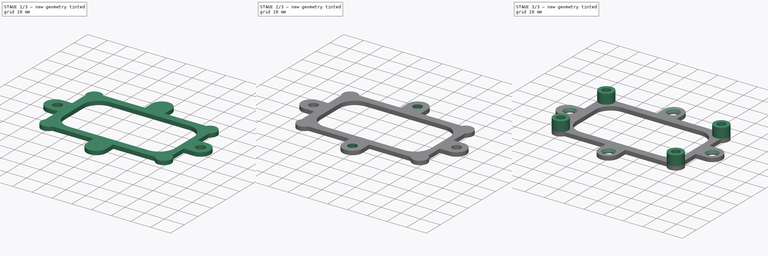
[diagram: build sequence overview — one tinted view per stage of 3, left to right]
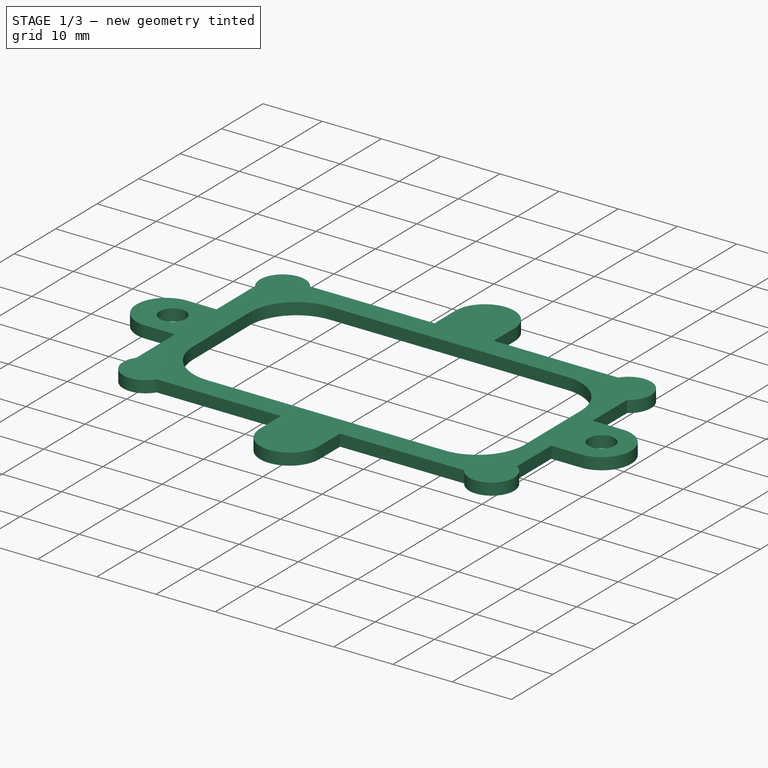
[diagram: stage 1 of 3 — iso view after this stage's code; geometry added in this stage tinted green]
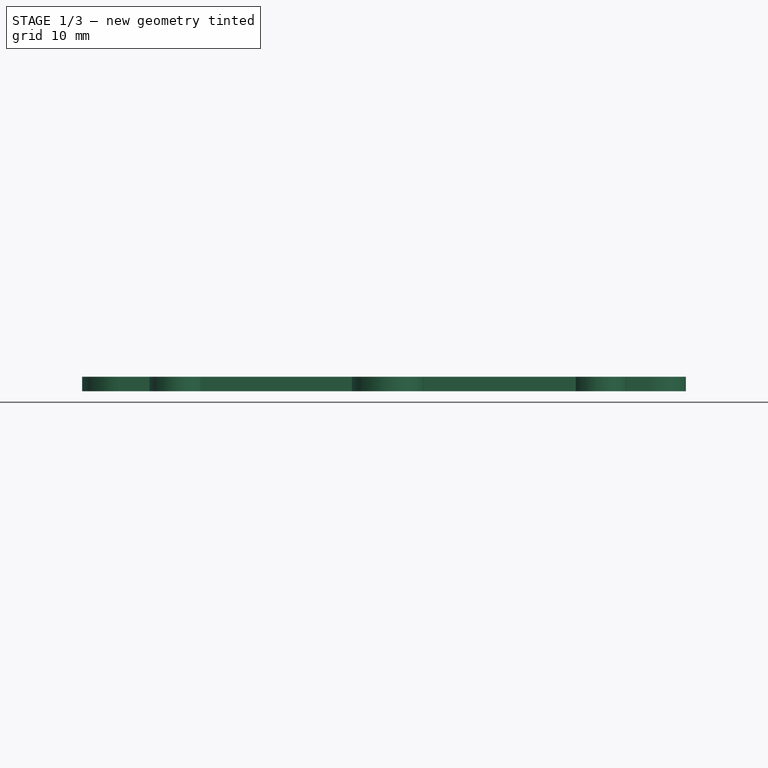
[diagram: stage 1 of 3 — front view after this stage's code; geometry added in this stage tinted green]
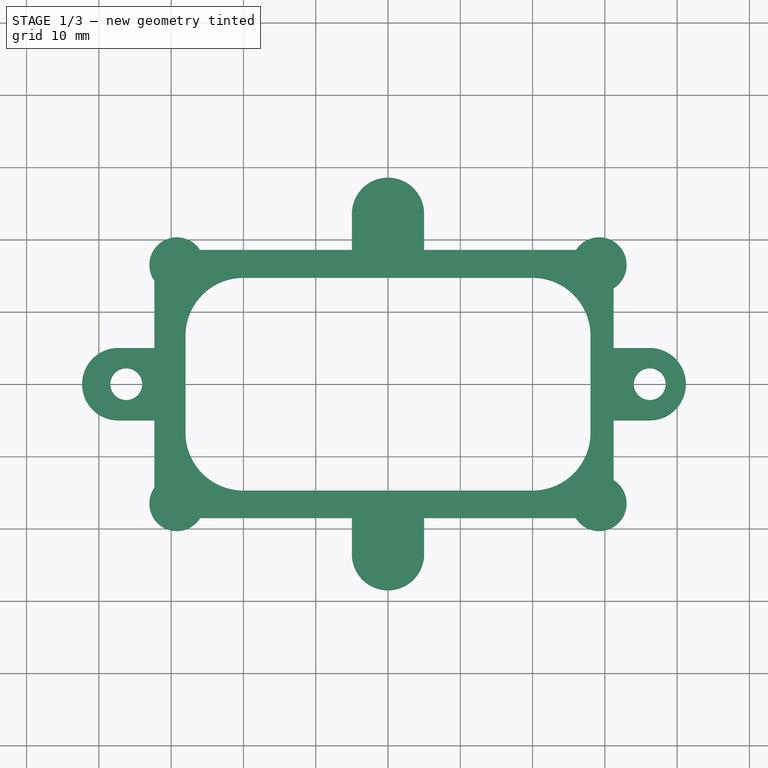
[diagram: stage 1 of 3 — top view after this stage's code; geometry added in this stage tinted green]
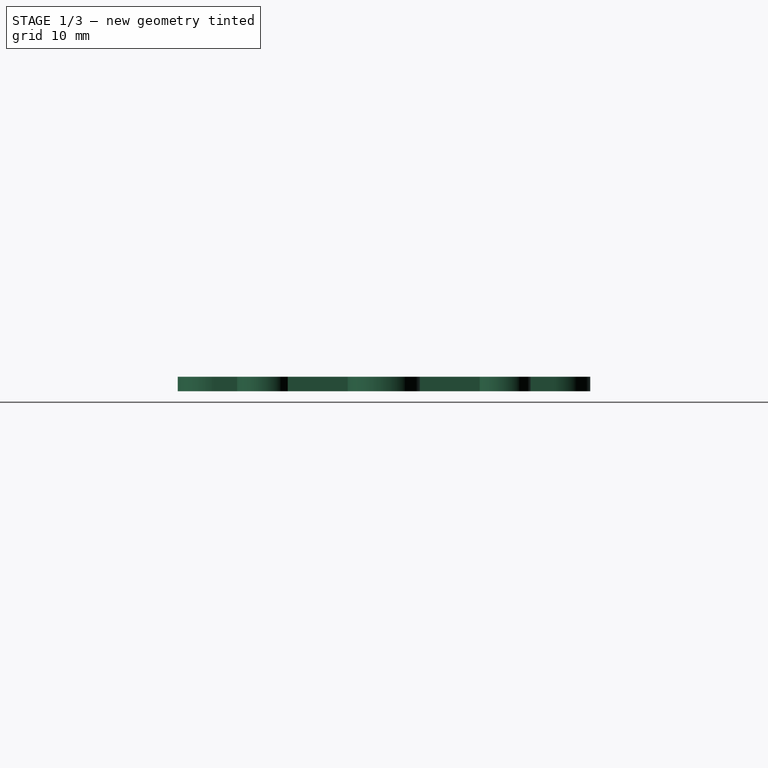
[diagram: stage 1 of 3 — right view after this stage's code; geometry added in this stage tinted green]
FCSTD DOCUMENT  (FreeCAD 0.19R)
Label: support_Carte_ESP
License: Creative Commons Attribution-NonCommercial
LicenseURL: http://creativecommons.org/licenses/by-nc/4.0/
objects: Sketcher::SketchObject×5, PartDesign::Pocket×3, PartDesign::Pad×2, PartDesign::Mirrored×2, PartDesign::Chamfer×1, PartDesign::Body×1
note: 20 computed .brp shape members not serialized (recipe doc carries the construction recipe); baked Part::Feature solids carry a one-line shape summary decoded from their .brp

FEATURE [Sketcher::SketchObject] Sketch
  FullyConstrained = false
  MapMode = 5
  Support = -> [XY_Plane]
  sketch-geometry (40):
    g0: LineSegment StartX=-29.21 StartY=16.51 StartZ=0 EndX=29.21 EndY=16.51 EndZ=0
    g1: LineSegment StartX=29.21 StartY=16.51 StartZ=0 EndX=29.21 EndY=-16.51 EndZ=0
    g2: LineSegment StartX=29.21 StartY=-16.51 StartZ=0 EndX=-29.21 EndY=-16.51 EndZ=0
    g3: LineSegment StartX=-29.21 StartY=-16.51 StartZ=0 EndX=-29.21 EndY=16.51 EndZ=0
    g4: Circle CenterX=-29.21 CenterY=16.51 CenterZ=0 NormalX=0 NormalY=0 NormalZ=1 AngleXU=0 Radius=3.8
    g5: Circle CenterX=29.21 CenterY=16.51 CenterZ=0 NormalX=0 NormalY=0 NormalZ=1 AngleXU=0 Radius=3.8
    g6: Circle CenterX=29.21 CenterY=-16.51 CenterZ=0 NormalX=0 NormalY=0 NormalZ=1 AngleXU=0 Radius=3.8
    g7: Circle CenterX=-29.21 CenterY=-16.51 CenterZ=0 NormalX=0 NormalY=0 NormalZ=1 AngleXU=0 Radius=3.8
    g8: LineSegment StartX=-20.0093 StartY=14.7259 StartZ=0 EndX=20.0093 EndY=14.7259 EndZ=0
    g9: LineSegment StartX=28.0093 StartY=6.72594 StartZ=0 EndX=28.0093 EndY=-6.72594 EndZ=0
    g10: LineSegment StartX=20.0093 StartY=-14.7259 StartZ=0 EndX=-20.0093 EndY=-14.7259 EndZ=0
    g11: LineSegment StartX=-28.0093 StartY=-6.72594 StartZ=0 EndX=-28.0093 EndY=6.72594 EndZ=0
    g12: LineSegment StartX=-26.0145 StartY=18.5665 StartZ=0 EndX=-5 EndY=18.5665 EndZ=0
    g13: LineSegment StartX=31.21 StartY=13.2789 StartZ=0 EndX=31.21 EndY=5 EndZ=0
    g14: LineSegment StartX=25.9789 StartY=-18.51 StartZ=0 EndX=5 EndY=-18.51 EndZ=0
    g15: LineSegment StartX=-32.3177 StartY=-14.3232 StartZ=0 EndX=-32.3177 EndY=-5 EndZ=0
    g16: ArcOfCircle CenterX=29.21 CenterY=16.51 CenterZ=0 NormalX=0 NormalY=0 NormalZ=1 AngleXU=0 Radius=3.8 StartAngle=5.26665 EndAngle=8.85294
    g17: ArcOfCircle CenterX=-29.21 CenterY=16.51 CenterZ=0 NormalX=0 NormalY=0 NormalZ=1 AngleXU=0 Radius=3.8 StartAngle=0.571837 EndAngle=3.75477
    g18: ArcOfCircle CenterX=-29.21 CenterY=-16.51 CenterZ=0 NormalX=0 NormalY=0 NormalZ=1 AngleXU=0 Radius=3.8 StartAngle=2.52842 EndAngle=5.72892
    g19: ArcOfCircle CenterX=29.21 CenterY=-16.51 CenterZ=0 NormalX=0 NormalY=0 NormalZ=1 AngleXU=0 Radius=3.8 StartAngle=3.69585 EndAngle=7.29972
    g20: ArcOfCircle CenterX=0 CenterY=23.5665 CenterZ=0 NormalX=0 NormalY=0 NormalZ=1 AngleXU=0 Radius=5 StartAngle=0 EndAngle=3.14159
    g21: LineSegment StartX=-5 StartY=23.5665 StartZ=0 EndX=-5 EndY=18.5665 EndZ=0
    g22: LineSegment StartX=5 StartY=23.5665 StartZ=0 EndX=5 EndY=18.5665 EndZ=0
    g23: LineSegment StartX=5 StartY=18.5665 StartZ=0 EndX=26.0145 EndY=18.5665 EndZ=0
    g24: ArcOfCircle CenterX=36.21 CenterY=0 CenterZ=0 NormalX=0 NormalY=0 NormalZ=1 AngleXU=0 Radius=5 StartAngle=4.71239 EndAngle=7.85398
    g25: ArcOfCircle CenterX=0 CenterY=-23.51 CenterZ=0 NormalX=0 NormalY=0 NormalZ=1 AngleXU=0 Radius=5 StartAngle=3.14159 EndAngle=6.28319
    g26: ArcOfCircle CenterX=-37.3177 CenterY=0 CenterZ=0 NormalX=0 NormalY=0 NormalZ=1 AngleXU=0 Radius=5 StartAngle=1.5708 EndAngle=4.71239
    g27: LineSegment StartX=-37.3177 StartY=5 StartZ=0 EndX=-32.3177 EndY=5 EndZ=0
    g28: LineSegment StartX=-37.3177 StartY=-5 StartZ=0 EndX=-32.3177 EndY=-5 EndZ=0
    g29: LineSegment StartX=-5 StartY=-23.51 StartZ=0 EndX=-5 EndY=-18.51 EndZ=0
    g30: LineSegment StartX=5 StartY=-23.51 StartZ=0 EndX=5 EndY=-18.51 EndZ=0
    g31: LineSegment StartX=36.21 StartY=-5 StartZ=0 EndX=31.21 EndY=-5 EndZ=0
    g32: LineSegment StartX=36.21 StartY=5 StartZ=0 EndX=31.21 EndY=5 EndZ=0
    g33: LineSegment StartX=-5 StartY=-18.51 StartZ=0 EndX=-25.9789 EndY=-18.51 EndZ=0
    g34: LineSegment StartX=31.21 StartY=-5 StartZ=0 EndX=31.21 EndY=-13.2789 EndZ=0
    g35: LineSegment StartX=-32.3177 StartY=5 StartZ=0 EndX=-32.3177 EndY=14.3232 EndZ=0
    g36: ArcOfCircle CenterX=20.0093 CenterY=-6.72594 CenterZ=0 NormalX=0 NormalY=0 NormalZ=1 AngleXU=0 Radius=8 StartAngle=4.71239 EndAngle=6.28319
    g37: ArcOfCircle CenterX=20.0093 CenterY=6.72594 CenterZ=0 NormalX=0 NormalY=0 NormalZ=1 AngleXU=0 Radius=8 StartAngle=0 EndAngle=1.5708
    g38: ArcOfCircle CenterX=-20.0093 CenterY=6.72594 CenterZ=0 NormalX=0 NormalY=0 NormalZ=1 AngleXU=0 Radius=8 StartAngle=1.5708 EndAngle=3.14159
    g39: ArcOfCircle CenterX=-20.0093 CenterY=-6.72594 CenterZ=0 NormalX=0 NormalY=0 NormalZ=1 AngleXU=0 Radius=8 StartAngle=3.14159 EndAngle=4.71239
  constraints (113):
    c: Coincident(g0,g1)
    c: Coincident(g1,g2)
    c: Coincident(g2,g3)
    c: Coincident(g3,g0)
    c: Horizontal(g0)
    c: Horizontal(g2)
    c: Vertical(g1)
    c: Vertical(g3)
    c: DistanceX(g2,g2) = 58.42
    c: DistanceY(g3,g3) = 33.02
    c: Symmetric(g0,g1,g-1)
    c: Coincident(g4,g0)
    c: Coincident(g5,g0)
    c: Coincident(g6,g1)
    c: Coincident(g7,g2)
    c: Equal(g4,g7)
    c: Equal(g7,g6)
    c: Equal(g6,g5)
    c: Radius(g5) = 3.8
    c: Horizontal(g8)
    c: Horizontal(g10)
    c: Vertical(g9)
    c: Vertical(g11)
    c: Horizontal(g12)
    c: Horizontal(g14)
    c: Vertical(g13)
    c: Vertical(g15)
    c: Coincident(g16,g0)
    c: PointOnObject(g16,g5)
    c: Coincident(g17,g0)
    c: PointOnObject(g17,g4)
    c: Coincident(g18,g2)
    c: PointOnObject(g18,g7)
    c: Coincident(g19,g1)
    c: PointOnObject(g19,g6)
    c: PointOnObject(g18,g14)
    c: PointOnObject(g18,g15)
    c: PointOnObject(g17,g15)
    c: PointOnObject(g17,g12)
    c: PointOnObject(g16,g12)
    c: PointOnObject(g16,g13)
    c: PointOnObject(g19,g14)
    c: PointOnObject(g33,g7)
    c: PointOnObject(g15,g7)
    c: PointOnObject(g14,g6)
    c: Coincident(g34,g19)
    c: DistanceX(g19,g34) = 2
    c: DistanceY(g14,g19) = 2
    c: PointOnObject(g13,g5)
    c: PointOnObject(g23,g5)
    c: PointOnObject(g12,g4)
    c: PointOnObject(g35,g4)
    c: PointOnObject(g20,g-2)
    c: Coincident(g21,g20)
    c: Vertical(g21)
    c: Coincident(g22,g20)
    c: Vertical(g22)
    c: Distance(g20,g20) = 10
    c: Distance(g20,g12) = 5
    c: Horizontal(g20,g20)
    c: Horizontal(g20,g20)
    c: Coincident(g12,g21)
    c: Coincident(g23,g22)
    c: Tangent(g12,g23)
    c: PointOnObject(g24,g-1)
    c: PointOnObject(g25,g-2)
    c: PointOnObject(g26,g-1)
    c: Coincident(g27,g26)
    c: Horizontal(g27)
    c: Coincident(g28,g26)
    c: Horizontal(g28)
    c: Coincident(g29,g25)
    c: Vertical(g29)
    c: Coincident(g30,g25)
    c: Vertical(g30)
    c: Coincident(g31,g24)
    c: Horizontal(g31)
    c: Coincident(g32,g24)
    c: Horizontal(g32)
    c: Distance(g24,g24) = 10
    c: Vertical(g24,g24)
    c: Vertical(g24,g24)
    c: DistanceX(g32,g32) = 5
    c: Horizontal(g25,g25)
    c: Horizontal(g25,g25)
    c: DistanceX(g25,g25) = 10
    c: DistanceY(g30,g30) = 5
    c: DistanceX(g28,g28) = 5
    c: Vertical(g26,g26)
    c: Vertical(g26,g26)
    c: DistanceY(g26,g26) = 10
    c: Coincident(g14,g30)
    c: Coincident(g33,g29)
    c: Tangent(g14,g33)
    c: Coincident(g13,g32)
    c: Coincident(g34,g31)
    c: Tangent(g13,g34)
    c: Coincident(g15,g28)
    c: Coincident(g35,g27)
    c: Tangent(g15,g35)
    c: Tangent(g10,g36) = 1.5708
    c: Tangent(g9,g36) = 1.5708
    c: Tangent(g9,g37) = 1.5708
    c: Tangent(g8,g37) = 1.5708
    c: Tangent(g8,g38) = 1.5708
    c: Tangent(g11,g38) = 1.5708
    c: Tangent(g11,g39) = 1.5708
    c: Tangent(g10,g39) = 1.5708
    c: Equal(g38,g39)
    c: Equal(g39,g36)
    c: Equal(g36,g37)
    c: Symmetric(g38,g36,g-1)
    c: Radius(g37) = 8
FEATURE [PartDesign::Pad] Pad
  Direction = (1,1,1)
  Length = 2
  Length2 = 100
  Profile = -> Sketch
  Type = 0
FEATURE [Sketcher::SketchObject] Sketch001
  ExternalGeometry = -> [Pad]
  FullyConstrained = true
  MapMode = 5
  Placement = pos=(0,0,2) rot=(0,0,1;0rad)
  Support = -> [Pad]
  sketch-geometry (1):
    g0: Circle CenterX=36.21 CenterY=0 CenterZ=0 NormalX=0 NormalY=0 NormalZ=1 AngleXU=0 Radius=2.2
  constraints (2):
    c: Coincident(g0,g-3)
    c: Radius(g0) = 2.2
FEATURE [PartDesign::Pocket] Pocket
  BaseFeature = -> Pad
  Length = 5
  Length2 = 100
  Profile = -> Sketch001
  Type = 1
FEATURE [PartDesign::Mirrored] Mirrored
  BaseFeature = -> Pocket
  MirrorPlane = -> Sketch001 [V_Axis]
  Originals = -> [Pocket]
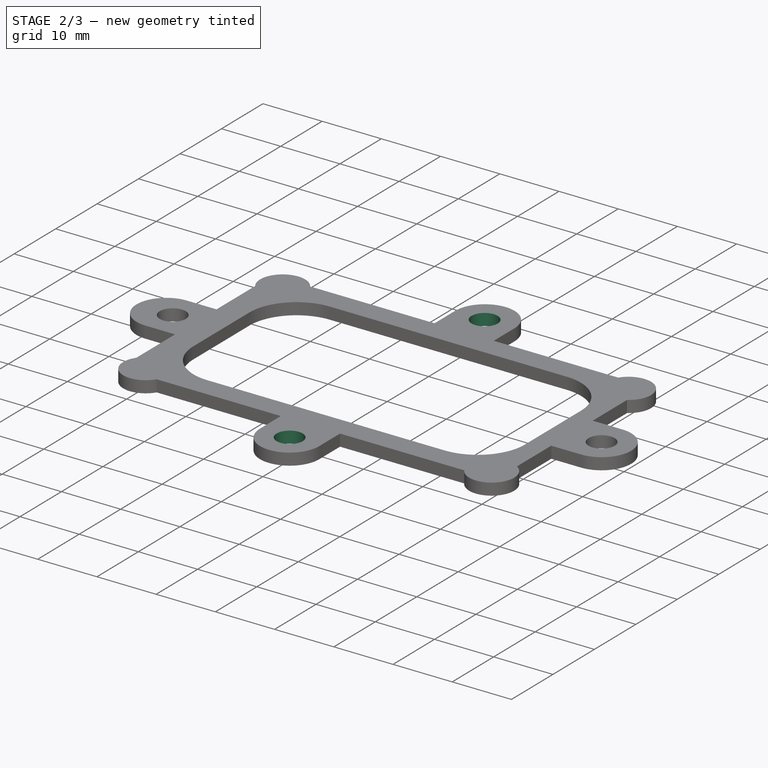
[diagram: stage 2 of 3 — iso view after this stage's code; geometry added in this stage tinted green]
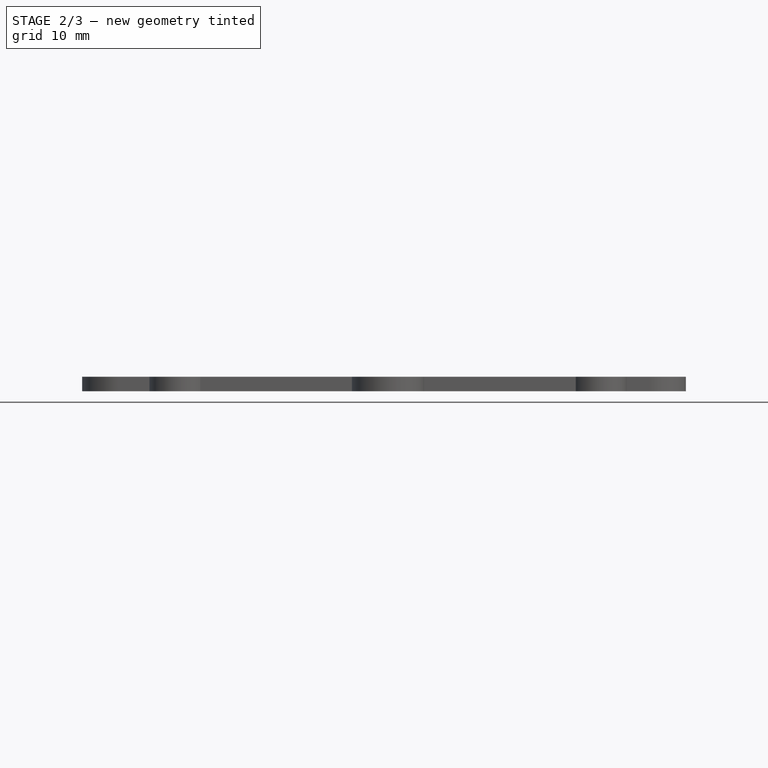
[diagram: stage 2 of 3 — front view after this stage's code; geometry added in this stage tinted green]
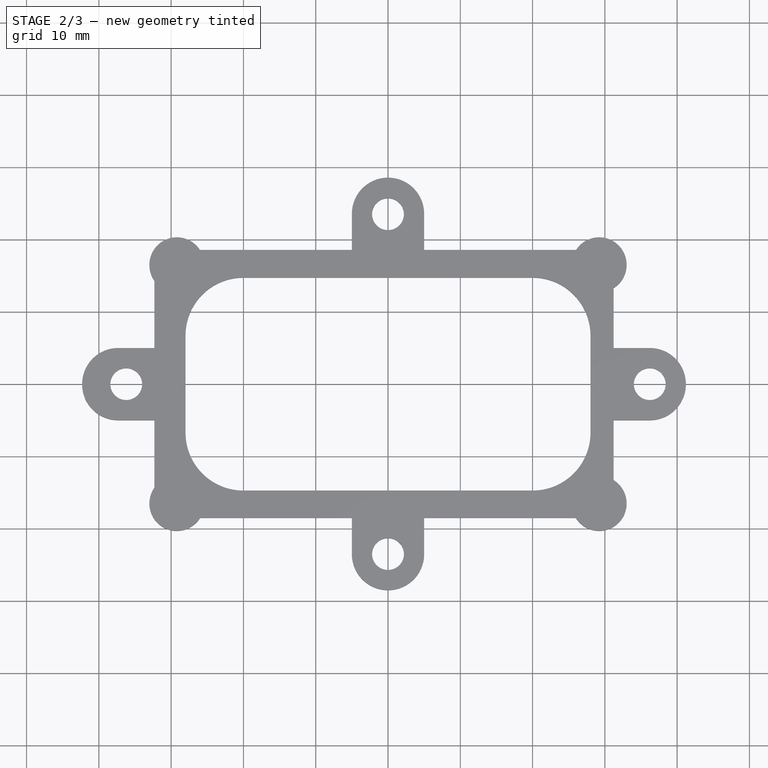
[diagram: stage 2 of 3 — top view after this stage's code; geometry added in this stage tinted green]
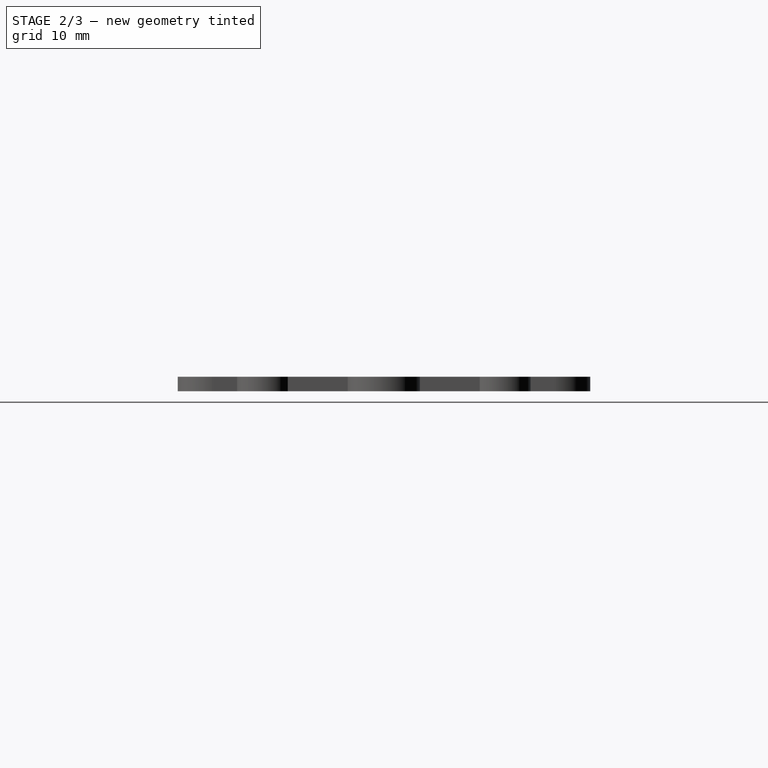
[diagram: stage 2 of 3 — right view after this stage's code; geometry added in this stage tinted green]
FEATURE [Sketcher::SketchObject] Sketch002
  ExternalGeometry = -> [Mirrored]
  FullyConstrained = true
  MapMode = 5
  Placement = pos=(0,0,2) rot=(0,0,1;0rad)
  Support = -> [Mirrored]
  sketch-geometry (1):
    g0: Circle CenterX=0 CenterY=-23.51 CenterZ=0 NormalX=0 NormalY=0 NormalZ=1 AngleXU=0 Radius=2.2
  constraints (2):
    c: Coincident(g0,g-3)
    c: Radius(g0) = 2.2
FEATURE [PartDesign::Pocket] Pocket001
  BaseFeature = -> Mirrored
  Length = 5
  Length2 = 100
  Profile = -> Sketch002
  Type = 1
FEATURE [PartDesign::Mirrored] Mirrored001
  BaseFeature = -> Pocket001
  MirrorPlane = -> Sketch002 [H_Axis]
  Originals = -> [Pocket001]
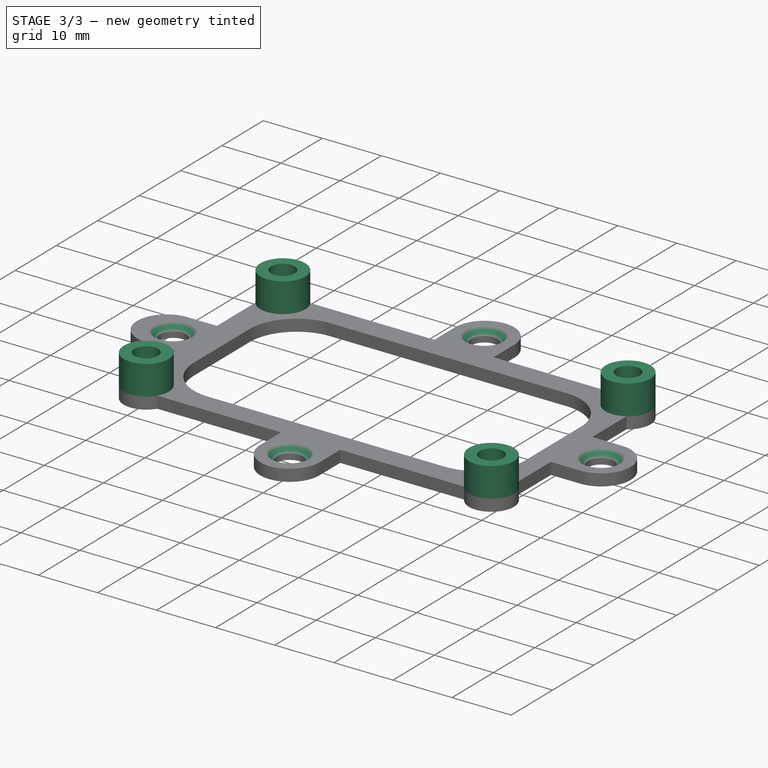
[diagram: stage 3 of 3 — iso view after this stage's code; geometry added in this stage tinted green]
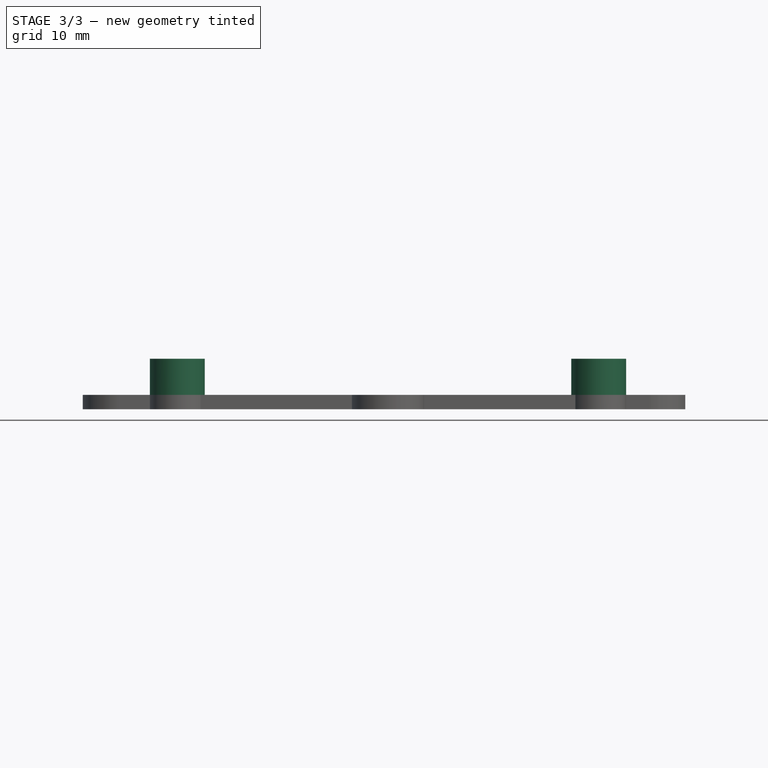
[diagram: stage 3 of 3 — front view after this stage's code; geometry added in this stage tinted green]
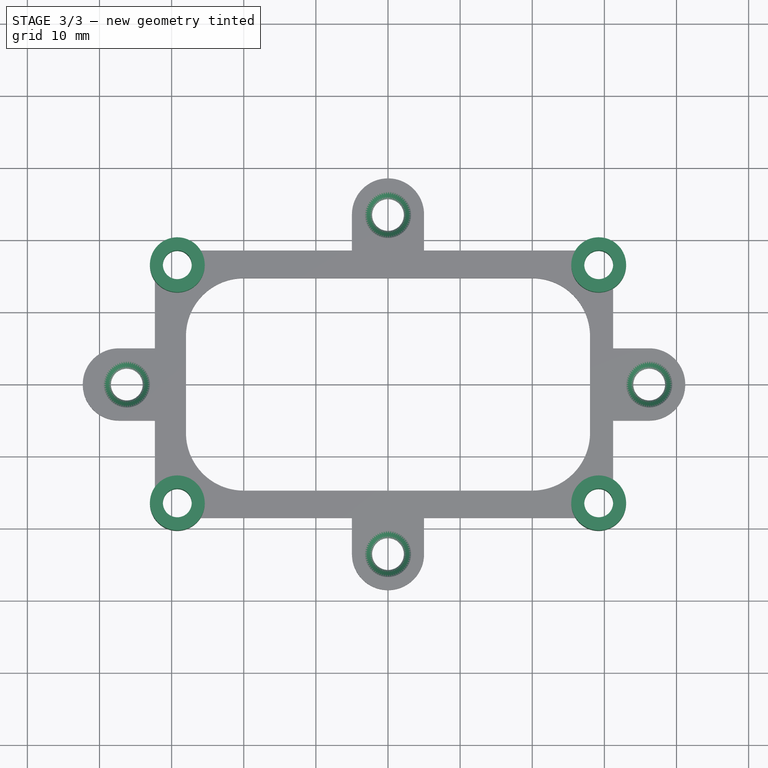
[diagram: stage 3 of 3 — top view after this stage's code; geometry added in this stage tinted green]
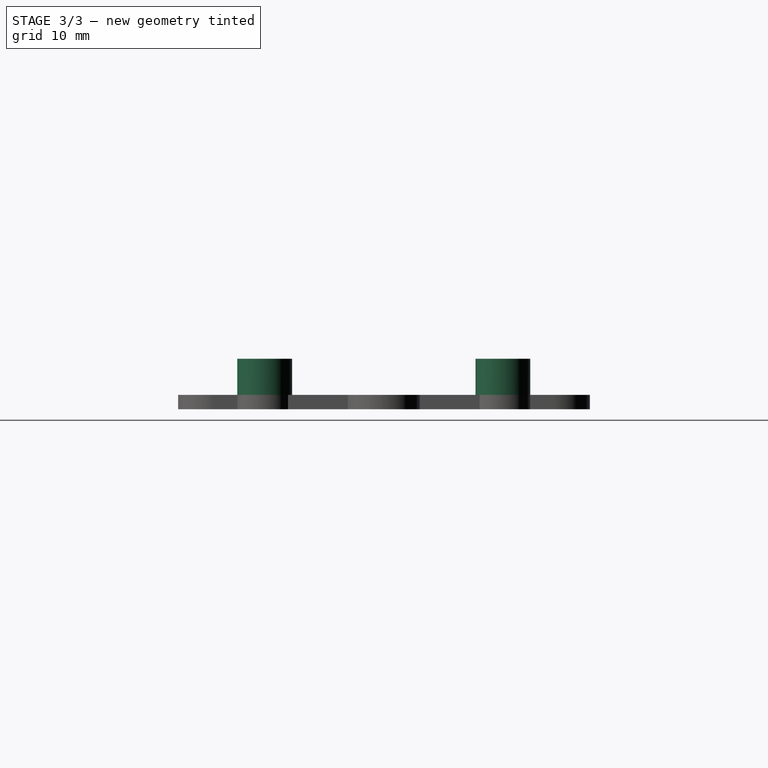
[diagram: stage 3 of 3 — right view after this stage's code; geometry added in this stage tinted green]
FEATURE [PartDesign::Chamfer] Chamfer
  Angle = 45
  Base = -> Mirrored001 [Edge76,Edge66,Edge65,Edge75]
  BaseFeature = -> Mirrored001
  ChamferType = 0
  FlipDirection = false
  Size = 1
  Size2 = 1
  SupportTransform = false
FEATURE [Sketcher::SketchObject] Sketch003
  ExternalGeometry = -> [Chamfer]
  FullyConstrained = true
  MapMode = 5
  Placement = pos=(0,0,2) rot=(0,0,1;0rad)
  Support = -> [Chamfer]
  sketch-geometry (4):
    g0: Circle CenterX=-29.21 CenterY=-16.51 CenterZ=0 NormalX=0 NormalY=0 NormalZ=1 AngleXU=0 Radius=3.8
    g1: Circle CenterX=29.21 CenterY=-16.51 CenterZ=0 NormalX=0 NormalY=0 NormalZ=1 AngleXU=0 Radius=3.8
    g2: Circle CenterX=29.21 CenterY=16.51 CenterZ=0 NormalX=0 NormalY=0 NormalZ=1 AngleXU=0 Radius=3.8
    g3: Circle CenterX=-29.21 CenterY=16.51 CenterZ=0 NormalX=0 NormalY=0 NormalZ=1 AngleXU=0 Radius=3.8
  constraints (8):
    c: Coincident(g0,g-6)
    c: PointOnObject(g-6,g0)
    c: Coincident(g1,g-3)
    c: PointOnObject(g-3,g1)
    c: Coincident(g2,g-4)
    c: PointOnObject(g-4,g2)
    c: Coincident(g3,g-5)
    c: PointOnObject(g-5,g3)
FEATURE [PartDesign::Pad] Pad001
  BaseFeature = -> Chamfer
  Direction = (1,1,1)
  Length = 5
  Length2 = 100
  Profile = -> Sketch003
  Type = 0
FEATURE [Sketcher::SketchObject] Sketch004
  ExternalGeometry = -> [Pad001]
  FullyConstrained = true
  MapMode = 5
  Placement = pos=(0,0,7) rot=(0,0,1;0rad)
  Support = -> [Pad001]
  sketch-geometry (4):
    g0: Circle CenterX=-29.21 CenterY=16.51 CenterZ=0 NormalX=0 NormalY=0 NormalZ=1 AngleXU=0 Radius=2
    g1: Circle CenterX=29.21 CenterY=16.51 CenterZ=0 NormalX=0 NormalY=0 NormalZ=1 AngleXU=0 Radius=2
    g2: Circle CenterX=29.21 CenterY=-16.51 CenterZ=0 NormalX=0 NormalY=0 NormalZ=1 AngleXU=0 Radius=2
    g3: Circle CenterX=-29.21 CenterY=-16.51 CenterZ=0 NormalX=0 NormalY=0 NormalZ=1 AngleXU=0 Radius=2
  constraints (8):
    c: Coincident(g0,g-3)
    c: Coincident(g1,g-4)
    c: Coincident(g2,g-5)
    c: Coincident(g3,g-6)
    c: Equal(g0,g3)
    c: Equal(g3,g2)
    c: Equal(g2,g1)
    c: Radius(g2) = 2
FEATURE [PartDesign::Pocket] Pocket002
  BaseFeature = -> Pad001
  Length = 5
  Length2 = 100
  Profile = -> Sketch004
  Type = 1
FEATURE [PartDesign::Body] Body
  Group = -> [Sketch,Pad,Sketch001,Pocket,Mirrored,Sketch002,Pocket001,Mirrored001,Chamfer,Sketch003,Pad001,Sketch004,Pocket002]
  Origin = -> Origin
  Tip = -> Pocket002
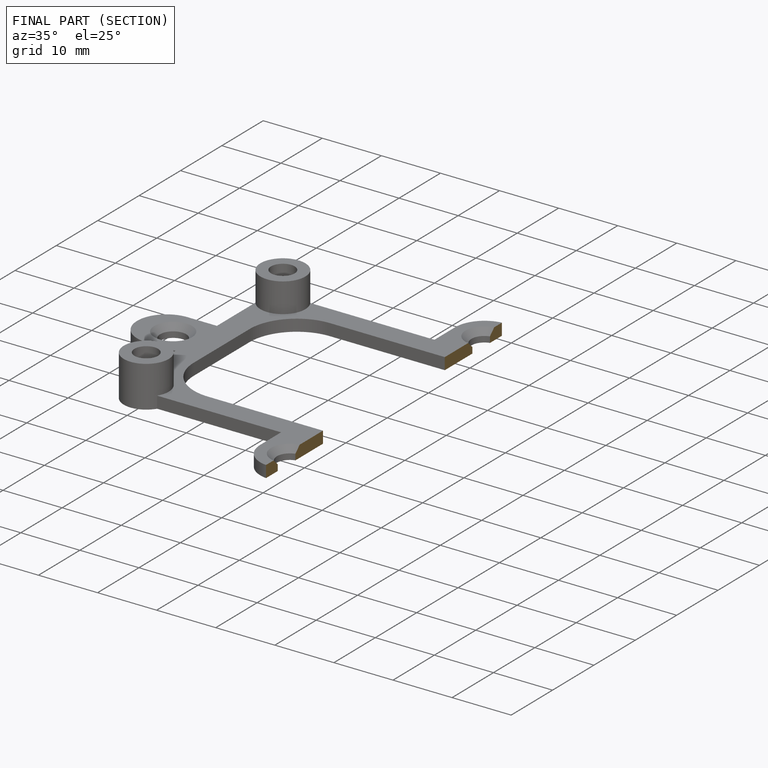
[diagram: finished part — half-section view (interior)]
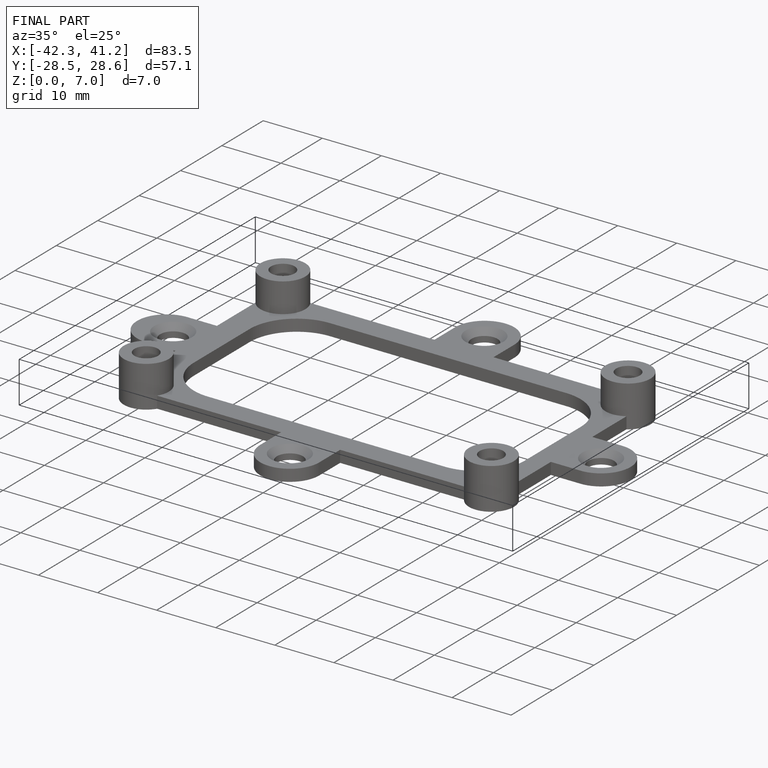
[diagram: finished part — iso view with bounding-box wireframe]
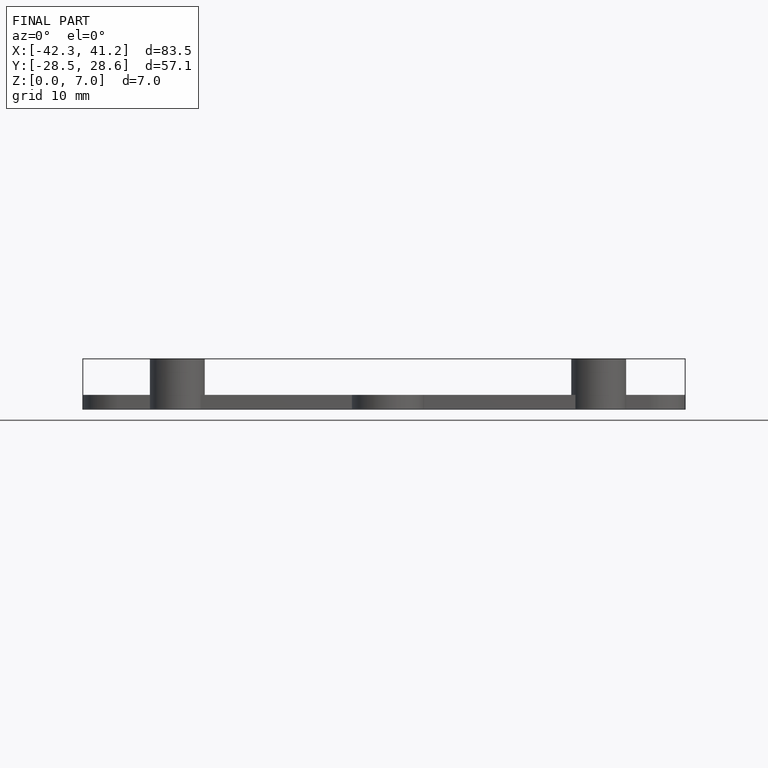
[diagram: finished part — front view with bounding-box wireframe]
